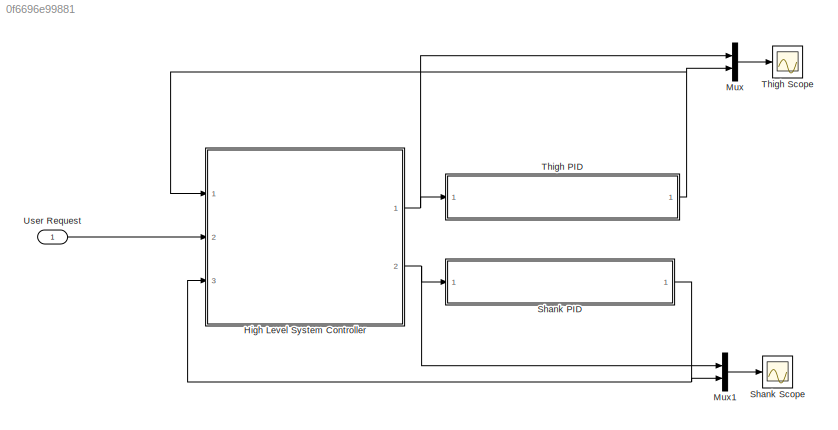
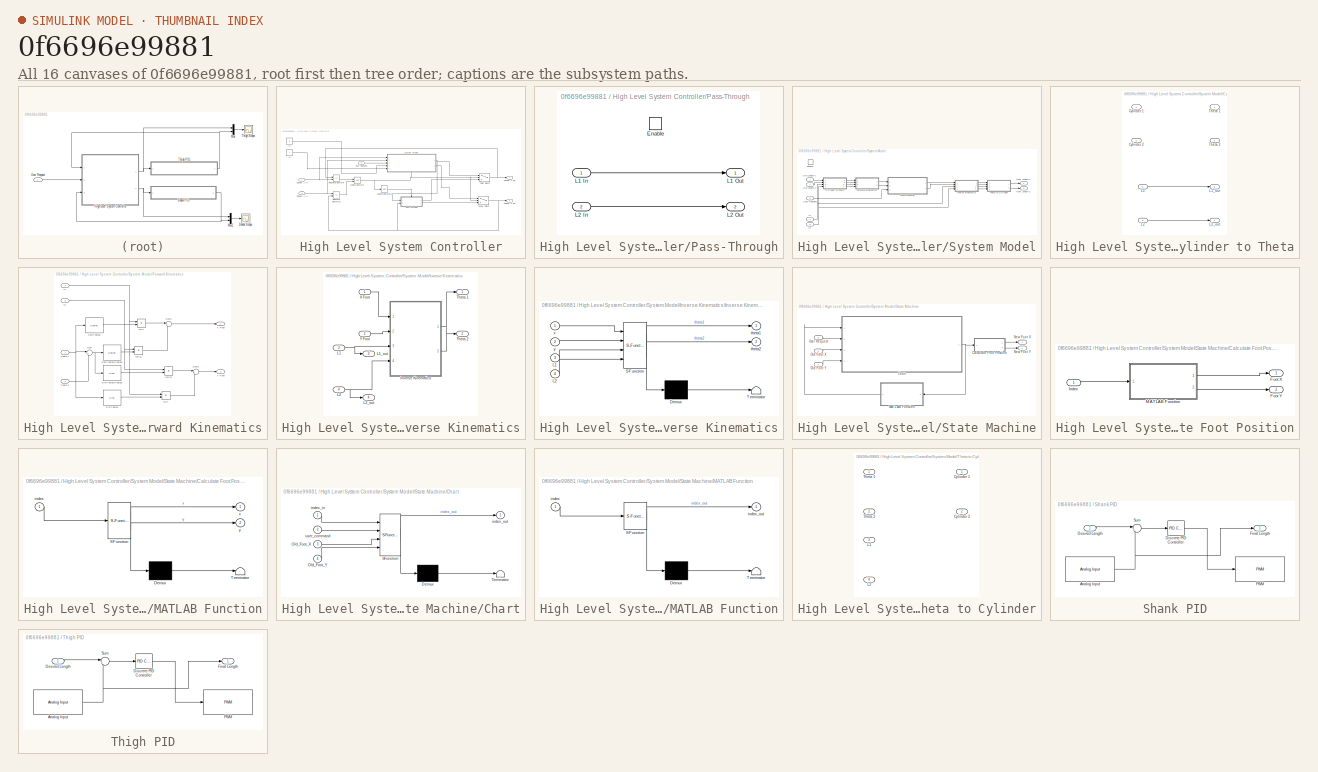
[diagram: thumbnail index - all 16 canvases of the model, root first then tree order]
MODEL slx_0f6696e99881
KIND model
BLOCK [SubSystem] High Level System Controller
  Ports = [3, 2]
  RequestExecContextInheritance = off
BLOCK [Inport] High Level System Controller/Cylinder 1 In
  IconDisplay = Port number
BLOCK [Outport] High Level System Controller/Cylinder 1 Out
  IconDisplay = Port number
BLOCK [Inport] High Level System Controller/Cylinder 2 In
  IconDisplay = Port number
  Port = 3
BLOCK [Outport] High Level System Controller/Cylinder 2 Out
  IconDisplay = Port number
  Port = 2
BLOCK [Constant] High Level System Controller/L1
  Value = 8
BLOCK [Constant] High Level System Controller/L2
  Value = 7
BLOCK [Logic] High Level System Controller/Logical Operator
  AllPortsSameDT = off
  OutDataTypeStr = boolean
  Ports = [2, 1]
BLOCK [Logic] High Level System Controller/Logical Operator1
  AllPortsSameDT = off
  Operator = NOT
  OutDataTypeStr = boolean
  Ports = [1, 1]
BLOCK [SubSystem] High Level System Controller/Pass-Through
  Ports = [2, 2, 1]
  RequestExecContextInheritance = off
  TreatAsAtomicUnit = on
BLOCK [EnablePort] High Level System Controller/Pass-Through/Enable
  Ports = []
BLOCK [Inport] High Level System Controller/Pass-Through/L1 In
  IconDisplay = Port number
BLOCK [Outport] High Level System Controller/Pass-Through/L1 Out
  IconDisplay = Port number
BLOCK [Inport] High Level System Controller/Pass-Through/L2 In
  IconDisplay = Port number
  Port = 2
BLOCK [Outport] High Level System Controller/Pass-Through/L2 Out
  IconDisplay = Port number
  Port = 2
BLOCK [RelationalOperator] High Level System Controller/Relational Operator
  InputSameDT = off
  Operator = <=
  OutDataTypeStr = boolean
  Ports = [2, 1]
BLOCK [RelationalOperator] High Level System Controller/Relational Operator1
  InputSameDT = off
  Operator = <=
  OutDataTypeStr = boolean
  Ports = [2, 1]
BLOCK [Switch] High Level System Controller/Shank Switch
  Criteria = u2 > Threshold
  InputSameDT = off
  SaturateOnIntegerOverflow = off
BLOCK [SubSystem] High Level System Controller/System Model
  Ports = [5, 2, 1]
  RequestExecContextInheritance = off
BLOCK [SubSystem] High Level System Controller/System Model/Cylinder to Theta
  Ports = [4, 4]
  RequestExecContextInheritance = off
BLOCK [Inport] High Level System Controller/System Model/Cylinder to Theta/Cylinder 1
  IconDisplay = Port number
BLOCK [Inport] High Level System Controller/System Model/Cylinder to Theta/Cylinder 2
  IconDisplay = Port number
  Port = 2
BLOCK [Inport] High Level System Controller/System Model/Cylinder to Theta/L1
  IconDisplay = Port number
  Port = 3
BLOCK [Outport] High Level System Controller/System Model/Cylinder to Theta/L1_out
  IconDisplay = Port number
  Port = 3
BLOCK [Inport] High Level System Controller/System Model/Cylinder to Theta/L2
  IconDisplay = Port number
  Port = 4
BLOCK [Outport] High Level System Controller/System Model/Cylinder to Theta/L2_out
  IconDisplay = Port number
  Port = 4
BLOCK [Outport] High Level System Controller/System Model/Cylinder to Theta/Theta 1
  IconDisplay = Port number
BLOCK [Outport] High Level System Controller/System Model/Cylinder to Theta/Theta 2
  IconDisplay = Port number
  Port = 2
BLOCK [EnablePort] High Level System Controller/System Model/Enable
  Ports = []
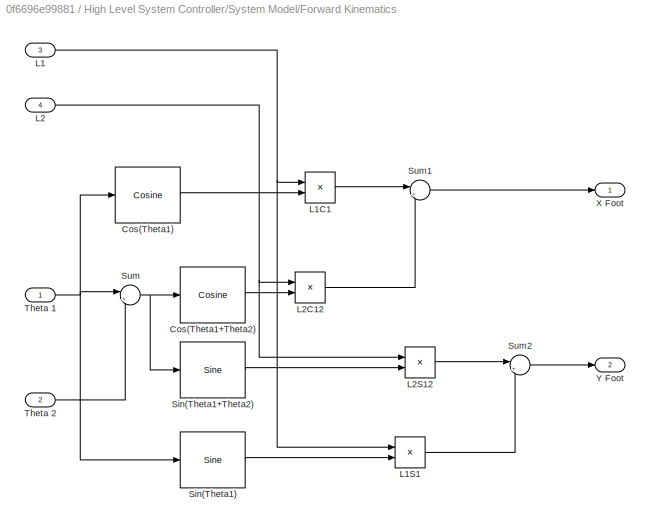
BLOCK [SubSystem] High Level System Controller/System Model/Forward Kinematics
  Ports = [4, 2]
  RequestExecContextInheritance = off
BLOCK [Reference] High Level System Controller/System Model/Forward Kinematics/Cos(Theta1)  REF=simulink/Lookup
Tables/Cosine
  Formula = cos(2*pi*u)
  InternalRulePriority = Speed
  NumDataPoints = (2^5)+1
  OutputWordLength = 16
  Ports = [1, 1]
  SourceBlock = simulink/Lookup\nTables/Cosine
  SourceType = Sine and Cosine
BLOCK [Reference] High Level System Controller/System Model/Forward Kinematics/Cos(Theta1+Theta2)  REF=simulink/Lookup
Tables/Cosine
  Formula = cos(2*pi*u)
  InternalRulePriority = Speed
  NumDataPoints = (2^5)+1
  OutputWordLength = 16
  Ports = [1, 1]
  SourceBlock = simulink/Lookup\nTables/Cosine
  SourceType = Sine and Cosine
BLOCK [Inport] High Level System Controller/System Model/Forward Kinematics/L1
  IconDisplay = Port number
  Port = 3
BLOCK [Product] High Level System Controller/System Model/Forward Kinematics/L1C1
  InputSameDT = off
  OutDataTypeStr = Inherit: Inherit via internal rule
  Ports = [2, 1]
  RndMeth = Floor
  SaturateOnIntegerOverflow = off
BLOCK [Product] High Level System Controller/System Model/Forward Kinematics/L1S1
  InputSameDT = off
  OutDataTypeStr = Inherit: Inherit via internal rule
  Ports = [2, 1]
  RndMeth = Floor
  SaturateOnIntegerOverflow = off
BLOCK [Inport] High Level System Controller/System Model/Forward Kinematics/L2
  IconDisplay = Port number
  Port = 4
BLOCK [Product] High Level System Controller/System Model/Forward Kinematics/L2C12
  InputSameDT = off
  OutDataTypeStr = Inherit: Inherit via internal rule
  Ports = [2, 1]
  RndMeth = Floor
  SaturateOnIntegerOverflow = off
BLOCK [Product] High Level System Controller/System Model/Forward Kinematics/L2S12
  InputSameDT = off
  OutDataTypeStr = Inherit: Inherit via internal rule
  Ports = [2, 1]
  RndMeth = Floor
  SaturateOnIntegerOverflow = off
BLOCK [Reference] High Level System Controller/System Model/Forward Kinematics/Sin(Theta1)  REF=simulink/Lookup
Tables/Sine
  Formula = sin(2*pi*u)
  InternalRulePriority = Speed
  NumDataPoints = (2^5)+1
  OutputWordLength = 16
  Ports = [1, 1]
  SourceBlock = simulink/Lookup\nTables/Sine
  SourceType = Sine and Cosine
BLOCK [Reference] High Level System Controller/System Model/Forward Kinematics/Sin(Theta1+Theta2)  REF=simulink/Lookup
Tables/Sine
  Formula = sin(2*pi*u)
  InternalRulePriority = Speed
  NumDataPoints = (2^5)+1
  OutputWordLength = 16
  Ports = [1, 1]
  SourceBlock = simulink/Lookup\nTables/Sine
  SourceType = Sine and Cosine
BLOCK [Sum] High Level System Controller/System Model/Forward Kinematics/Sum
  IconShape = round
  InputSameDT = off
  Inputs = |++
  OutDataTypeStr = Inherit: Inherit via internal rule
  Ports = [2, 1]
  SaturateOnIntegerOverflow = off
BLOCK [Sum] High Level System Controller/System Model/Forward Kinematics/Sum1
  IconShape = round
  InputSameDT = off
  Inputs = |++
  OutDataTypeStr = Inherit: Inherit via internal rule
  Ports = [2, 1]
  SaturateOnIntegerOverflow = off
BLOCK [Sum] High Level System Controller/System Model/Forward Kinematics/Sum2
  IconShape = round
  InputSameDT = off
  Inputs = |++
  OutDataTypeStr = Inherit: Inherit via internal rule
  Ports = [2, 1]
  SaturateOnIntegerOverflow = off
BLOCK [Inport] High Level System Controller/System Model/Forward Kinematics/Theta 1
  IconDisplay = Port number
BLOCK [Inport] High Level System Controller/System Model/Forward Kinematics/Theta 2
  IconDisplay = Port number
  Port = 2
BLOCK [Outport] High Level System Controller/System Model/Forward Kinematics/X Foot
  IconDisplay = Port number
BLOCK [Outport] High Level System Controller/System Model/Forward Kinematics/Y Foot
  IconDisplay = Port number
  Port = 2
BLOCK [SubSystem] High Level System Controller/System Model/Inverse Kinematics
  Ports = [4, 4]
  RequestExecContextInheritance = off
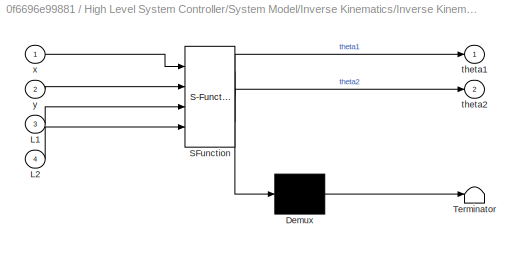
BLOCK [SubSystem] High Level System Controller/System Model/Inverse Kinematics/Inverse Kinematics
  ErrorFcn = Stateflow.Translate.translate
  PermitHierarchicalResolution = ExplicitOnly
  Ports = [4, 2]
  RequestExecContextInheritance = off
  SFBlockType = MATLAB Function
  TreatAsAtomicUnit = on
BLOCK [Demux] High Level System Controller/System Model/Inverse Kinematics/Inverse Kinematics/ Demux 
  Outputs = 1
  Ports = [1, 1]
BLOCK [S-Function] High Level System Controller/System Model/Inverse Kinematics/Inverse Kinematics/ SFunction 
  EnableBusSupport = on
  FunctionName = sf_sfun
  PortCounts = [4 3]
  Ports = [4, 3]
  Tag = Stateflow S-Function TestApp 2
BLOCK [Terminator] High Level System Controller/System Model/Inverse Kinematics/Inverse Kinematics/ Terminator 
BLOCK [Inport] High Level System Controller/System Model/Inverse Kinematics/Inverse Kinematics/L1
  IconDisplay = Port number
  Port = 3
BLOCK [Inport] High Level System Controller/System Model/Inverse Kinematics/Inverse Kinematics/L2
  IconDisplay = Port number
  Port = 4
BLOCK [Outport] High Level System Controller/System Model/Inverse Kinematics/Inverse Kinematics/theta1
  IconDisplay = Port number
BLOCK [Outport] High Level System Controller/System Model/Inverse Kinematics/Inverse Kinematics/theta2
  IconDisplay = Port number
  Port = 2
BLOCK [Inport] High Level System Controller/System Model/Inverse Kinematics/Inverse Kinematics/x
  IconDisplay = Port number
BLOCK [Inport] High Level System Controller/System Model/Inverse Kinematics/Inverse Kinematics/y
  IconDisplay = Port number
  Port = 2
BLOCK [Inport] High Level System Controller/System Model/Inverse Kinematics/L1
  IconDisplay = Port number
  Port = 3
BLOCK [Outport] High Level System Controller/System Model/Inverse Kinematics/L1_out
  IconDisplay = Port number
  Port = 3
BLOCK [Inport] High Level System Controller/System Model/Inverse Kinematics/L2
  IconDisplay = Port number
  Port = 4
BLOCK [Outport] High Level System Controller/System Model/Inverse Kinematics/L2_out
  IconDisplay = Port number
  Port = 4
BLOCK [Outport] High Level System Controller/System Model/Inverse Kinematics/Theta 1
  IconDisplay = Port number
BLOCK [Outport] High Level System Controller/System Model/Inverse Kinematics/Theta 2
  IconDisplay = Port number
  Port = 2
BLOCK [Inport] High Level System Controller/System Model/Inverse Kinematics/X Foot
  IconDisplay = Port number
BLOCK [Inport] High Level System Controller/System Model/Inverse Kinematics/Y Foot
  IconDisplay = Port number
  Port = 2
BLOCK [Inport] High Level System Controller/System Model/L1
  IconDisplay = Port number
  Port = 4
BLOCK [Inport] High Level System Controller/System Model/L2
  IconDisplay = Port number
  Port = 5
BLOCK [Outport] High Level System Controller/System Model/New Length 1
  IconDisplay = Port number
BLOCK [Outport] High Level System Controller/System Model/New Length 2
  IconDisplay = Port number
  Port = 2
BLOCK [Inport] High Level System Controller/System Model/Old Length 1
  IconDisplay = Port number
BLOCK [Inport] High Level System Controller/System Model/Old Length 2
  IconDisplay = Port number
  Port = 2
BLOCK [SubSystem] High Level System Controller/System Model/State Machine
  Ports = [3, 2]
  RequestExecContextInheritance = off
BLOCK [SubSystem] High Level System Controller/System Model/State Machine/Calculate Foot Position
  Ports = [1, 2]
  RequestExecContextInheritance = off
BLOCK [Outport] High Level System Controller/System Model/State Machine/Calculate Foot Position/Foot X
  IconDisplay = Port number
BLOCK [Outport] High Level System Controller/System Model/State Machine/Calculate Foot Position/Foot Y
  IconDisplay = Port number
  Port = 2
BLOCK [Inport] High Level System Controller/System Model/State Machine/Calculate Foot Position/Index
  IconDisplay = Port number
BLOCK [SubSystem] High Level System Controller/System Model/State Machine/Calculate Foot Position/MATLAB Function
  ErrorFcn = Stateflow.Translate.translate
  PermitHierarchicalResolution = ExplicitOnly
  Ports = [1, 2]
  RequestExecContextInheritance = off
  SFBlockType = MATLAB Function
  TreatAsAtomicUnit = on
BLOCK [Demux] High Level System Controller/System Model/State Machine/Calculate Foot Position/MATLAB Function/ Demux 
  Outputs = 1
  Ports = [1, 1]
BLOCK [S-Function] High Level System Controller/System Model/State Machine/Calculate Foot Position/MATLAB Function/ SFunction 
  EnableBusSupport = off
  FunctionName = sf_sfun
  PortCounts = [1 3]
  Ports = [1, 3]
  Tag = Stateflow S-Function TestApp 1
BLOCK [Terminator] High Level System Controller/System Model/State Machine/Calculate Foot Position/MATLAB Function/ Terminator 
BLOCK [Inport] High Level System Controller/System Model/State Machine/Calculate Foot Position/MATLAB Function/index
  IconDisplay = Port number
BLOCK [Outport] High Level System Controller/System Model/State Machine/Calculate Foot Position/MATLAB Function/x
  IconDisplay = Port number
BLOCK [Outport] High Level System Controller/System Model/State Machine/Calculate Foot Position/MATLAB Function/y
  IconDisplay = Port number
  Port = 2
BLOCK [SubSystem] High Level System Controller/System Model/State Machine/Chart
  ErrorFcn = Stateflow.Translate.translate
  PermitHierarchicalResolution = ExplicitOnly
  Ports = [4, 1]
  RequestExecContextInheritance = off
  SFBlockType = Chart
  TreatAsAtomicUnit = on
BLOCK [Demux] High Level System Controller/System Model/State Machine/Chart/ Demux 
  Outputs = 1
  Ports = [1, 1]
BLOCK [S-Function] High Level System Controller/System Model/State Machine/Chart/ SFunction 
  EnableBusSupport = on
  FunctionName = sf_sfun
  PortCounts = [4 2]
  Ports = [4, 2]
  Tag = Stateflow S-Function TestApp 3
BLOCK [Terminator] High Level System Controller/System Model/State Machine/Chart/ Terminator 
BLOCK [Inport] High Level System Controller/System Model/State Machine/Chart/Old_Foot_X
  IconDisplay = Port number
  Port = 3
BLOCK [Inport] High Level System Controller/System Model/State Machine/Chart/Old_Foot_Y
  IconDisplay = Port number
  Port = 4
BLOCK [Inport] High Level System Controller/System Model/State Machine/Chart/index_in
  IconDisplay = Port number
BLOCK [Outport] High Level System Controller/System Model/State Machine/Chart/index_out
  IconDisplay = Port number
BLOCK [Inport] High Level System Controller/System Model/State Machine/Chart/user_command
  IconDisplay = Port number
  Port = 2
BLOCK [SubSystem] High Level System Controller/System Model/State Machine/MATLAB Function
  ErrorFcn = Stateflow.Translate.translate
  PermitHierarchicalResolution = ExplicitOnly
  Ports = [1, 1]
  RequestExecContextInheritance = off
  SFBlockType = MATLAB Function
  TreatAsAtomicUnit = on
BLOCK [Demux] High Level System Controller/System Model/State Machine/MATLAB Function/ Demux 
  Outputs = 1
  Ports = [1, 1]
BLOCK [S-Function] High Level System Controller/System Model/State Machine/MATLAB Function/ SFunction 
  EnableBusSupport = off
  FunctionName = sf_sfun
  PortCounts = [1 2]
  Ports = [1, 2]
  Tag = Stateflow S-Function TestApp 4
BLOCK [Terminator] High Level System Controller/System Model/State Machine/MATLAB Function/ Terminator 
BLOCK [Inport] High Level System Controller/System Model/State Machine/MATLAB Function/index
  IconDisplay = Port number
BLOCK [Outport] High Level System Controller/System Model/State Machine/MATLAB Function/index_out
  IconDisplay = Port number
BLOCK [Outport] High Level System Controller/System Model/State Machine/New Foot X
  IconDisplay = Port number
BLOCK [Outport] High Level System Controller/System Model/State Machine/New Foot Y
  IconDisplay = Port number
  Port = 2
BLOCK [Inport] High Level System Controller/System Model/State Machine/Old Foot X
  IconDisplay = Port number
BLOCK [Inport] High Level System Controller/System Model/State Machine/Old Foot Y
  IconDisplay = Port number
  Port = 2
BLOCK [Inport] High Level System Controller/System Model/State Machine/User Request
  IconDisplay = Port number
  Port = 3
BLOCK [SubSystem] High Level System Controller/System Model/Theta to Cylinder
  Ports = [4, 2]
  RequestExecContextInheritance = off
BLOCK [Outport] High Level System Controller/System Model/Theta to Cylinder/Cylinder 1
  IconDisplay = Port number
BLOCK [Outport] High Level System Controller/System Model/Theta to Cylinder/Cylinder 2
  IconDisplay = Port number
  Port = 2
BLOCK [Inport] High Level System Controller/System Model/Theta to Cylinder/L1
  IconDisplay = Port number
  Port = 3
BLOCK [Inport] High Level System Controller/System Model/Theta to Cylinder/L2
  IconDisplay = Port number
  Port = 4
BLOCK [Inport] High Level System Controller/System Model/Theta to Cylinder/Theta 1
  IconDisplay = Port number
BLOCK [Inport] High Level System Controller/System Model/Theta to Cylinder/Theta 2
  IconDisplay = Port number
  Port = 2
BLOCK [Inport] High Level System Controller/System Model/User Request
  IconDisplay = Port number
  Port = 3
BLOCK [Switch] High Level System Controller/Thigh Switch
  Criteria = u2 > Threshold
  InputSameDT = off
  SaturateOnIntegerOverflow = off
BLOCK [Inport] High Level System Controller/User Request
  IconDisplay = Port number
  Port = 2
BLOCK [Mux] Mux
  DisplayOption = bar
  Inputs = 2
  Ports = [2, 1]
BLOCK [Mux] Mux1
  DisplayOption = bar
  Inputs = 2
  Ports = [2, 1]
BLOCK [SubSystem] Shank PID
  Ports = [1, 1]
  RequestExecContextInheritance = off
BLOCK [Reference] Shank PID/Analog Input  REF=arduinolib/Analog Input
  Ports = [0, 1]
  SourceBlock = arduinolib/Analog Input
  SourceType = Arduino Analog Input
  pinNumber = 6
  sampleTime = -1
BLOCK [Inport] Shank PID/Desired Length
  IconDisplay = Port number
BLOCK [Reference] Shank PID/Discrete PID Controller  REF=simulink/Continuous/PID Controller
  AntiWindupMode = none
  Controller = PID
  D = 0
  DOutDataTypeStr = Inherit: Inherit via internal rule
  DOutMax = []
  DOutMin = []
  DParamDataTypeStr = Inherit: Inherit via internal rule
  DParamMax = []
  DParamMin = []
  ExternalReset = none
  FilterContinuousStateAttributes = ''
  FilterMethod = Forward Euler
  FilterOutDataTypeStr = Inherit: Inherit via internal rule
  FilterOutMax = []
  FilterOutMin = []
  FilterRTWStateStorageClass = Auto
  FilterStateMustResolveToSignalObject = off
  Form = Parallel
  I = 0.78
  IOutDataTypeStr = Inherit: Inherit via internal rule
  IOutMax = []
  IOutMin = []
  IParamDataTypeStr = Inherit: Inherit via internal rule
  IParamMax = []
  IParamMin = []
  IgnoreLimit = off
  InitialConditionForFilter = 0
  InitialConditionForIntegrator = 0
  InitialConditionSource = internal
  IntegratorContinuousStateAttributes = ''
  IntegratorMethod = Forward Euler
  IntegratorOutDataTypeStr = Inherit: Inherit via internal rule
  IntegratorOutMax = []
  IntegratorOutMin = []
  IntegratorRTWStateStorageClass = Auto
  IntegratorStateMustResolveToSignalObject = off
  Kb = 1
  KbOutDataTypeStr = Inherit: Inherit via internal rule
  KbOutMax = []
  KbOutMin = []
  KbParamDataTypeStr = Inherit: Inherit via internal rule
  KbParamMax = []
  KbParamMin = []
  Kt = 1
  KtOutDataTypeStr = Inherit: Inherit via internal rule
  KtOutMax = []
  KtOutMin = []
  KtParamDataTypeStr = Inherit: Inherit via internal rule
  KtParamMax = []
  KtParamMin = []
  LimitOutput = off
  LinearizeAsGain = off
  LockScale = off
  LowerSaturationLimit = -inf
  N = 100
  NOutDataTypeStr = Inherit: Inherit via internal rule
  NOutMax = []
  NOutMin = []
  NParamDataTypeStr = Inherit: Inherit via internal rule
  NParamMax = []
  NParamMin = []
  P = 25
  POutDataTypeStr = Inherit: Inherit via internal rule
  POutMax = []
  POutMin = []
  PParamDataTypeStr = Inherit: Inherit via internal rule
  PParamMax = []
  PParamMin = []
  Ports = [1, 1]
  RndMeth = Floor
  SampleTime = -1
  SaturateOnIntegerOverflow = off
  SaturationOutDataTypeStr = Inherit: Same as input
  SaturationOutMax = []
  SaturationOutMin = []
  SourceBlock = simulink/Continuous/PID Controller
  SourceType = PID 1dof
  SumAccumDataTypeStr = Inherit: Inherit via internal rule
  SumDAccumDataTypeStr = Inherit: Inherit via internal rule
  SumDOutDataTypeStr = Inherit: Inherit via internal rule
  SumDOutMax = []
  SumDOutMin = []
  SumI1AccumDataTypeStr = Inherit: Inherit via internal rule
  SumI1OutDataTypeStr = Inherit: Inherit via internal rule
  SumI1OutMax = []
  SumI1OutMin = []
  SumI2AccumDataTypeStr = Inherit: Inherit via internal rule
  SumI2OutDataTypeStr = Inherit: Inherit via internal rule
  SumI2OutMax = []
  SumI2OutMin = []
  SumI3AccumDataTypeStr = Inherit: Inherit via internal rule
  SumI3OutDataTypeStr = Inherit: Inherit via internal rule
  SumI3OutMax = []
  SumI3OutMin = []
  SumOutDataTypeStr = Inherit: Inherit via internal rule
  SumOutMax = []
  SumOutMin = []
  TimeDomain = Discrete-time
  TrackingMode = off
  UpperSaturationLimit = inf
  ZeroCross = on
BLOCK [Outport] Shank PID/Final Length
  IconDisplay = Port number
BLOCK [Reference] Shank PID/PWM  REF=arduinolib/PWM
  Ports = [1]
  SourceBlock = arduinolib/PWM
  SourceType = Arduino PWM
  pinNumber = 7
BLOCK [Sum] Shank PID/Sum
  IconShape = round
  InputSameDT = off
  Inputs = |+-
  OutDataTypeStr = Inherit: Inherit via internal rule
  Ports = [2, 1]
  SaturateOnIntegerOverflow = off
BLOCK [Scope] Shank Scope
  Floating = off
  NumInputPorts = 1
  Ports = [1]
  SaveName = ScopeData1
  ShowLegends = off
  TimeRange = 1
  YMax = 10
  YMin = 0
BLOCK [SubSystem] Thigh PID
  Ports = [1, 1]
  RequestExecContextInheritance = off
BLOCK [Reference] Thigh PID/Analog Input  REF=arduinolib/Analog Input
  Ports = [0, 1]
  SourceBlock = arduinolib/Analog Input
  SourceType = Arduino Analog Input
  pinNumber = 4
  sampleTime = -1
BLOCK [Inport] Thigh PID/Desired Length
  IconDisplay = Port number
BLOCK [Reference] Thigh PID/Discrete PID Controller  REF=simulink/Continuous/PID Controller
  AntiWindupMode = none
  Controller = PID
  D = 0
  DOutDataTypeStr = Inherit: Inherit via internal rule
  DOutMax = []
  DOutMin = []
  DParamDataTypeStr = Inherit: Inherit via internal rule
  DParamMax = []
  DParamMin = []
  ExternalReset = none
  FilterContinuousStateAttributes = ''
  FilterMethod = Forward Euler
  FilterOutDataTypeStr = Inherit: Inherit via internal rule
  FilterOutMax = []
  FilterOutMin = []
  FilterRTWStateStorageClass = Auto
  FilterStateMustResolveToSignalObject = off
  Form = Parallel
  I = 0.78
  IOutDataTypeStr = Inherit: Inherit via internal rule
  IOutMax = []
  IOutMin = []
  IParamDataTypeStr = Inherit: Inherit via internal rule
  IParamMax = []
  IParamMin = []
  IgnoreLimit = off
  InitialConditionForFilter = 0
  InitialConditionForIntegrator = 0
  InitialConditionSource = internal
  IntegratorContinuousStateAttributes = ''
  IntegratorMethod = Forward Euler
  IntegratorOutDataTypeStr = Inherit: Inherit via internal rule
  IntegratorOutMax = []
  IntegratorOutMin = []
  IntegratorRTWStateStorageClass = Auto
  IntegratorStateMustResolveToSignalObject = off
  Kb = 1
  KbOutDataTypeStr = Inherit: Inherit via internal rule
  KbOutMax = []
  KbOutMin = []
  KbParamDataTypeStr = Inherit: Inherit via internal rule
  KbParamMax = []
  KbParamMin = []
  Kt = 1
  KtOutDataTypeStr = Inherit: Inherit via internal rule
  KtOutMax = []
  KtOutMin = []
  KtParamDataTypeStr = Inherit: Inherit via internal rule
  KtParamMax = []
  KtParamMin = []
  LimitOutput = off
  LinearizeAsGain = off
  LockScale = off
  LowerSaturationLimit = -inf
  N = 100
  NOutDataTypeStr = Inherit: Inherit via internal rule
  NOutMax = []
  NOutMin = []
  NParamDataTypeStr = Inherit: Inherit via internal rule
  NParamMax = []
  NParamMin = []
  P = 25
  POutDataTypeStr = Inherit: Inherit via internal rule
  POutMax = []
  POutMin = []
  PParamDataTypeStr = Inherit: Inherit via internal rule
  PParamMax = []
  PParamMin = []
  Ports = [1, 1]
  RndMeth = Floor
  SampleTime = -1
  SaturateOnIntegerOverflow = off
  SaturationOutDataTypeStr = Inherit: Same as input
  SaturationOutMax = []
  SaturationOutMin = []
  SourceBlock = simulink/Continuous/PID Controller
  SourceType = PID 1dof
  SumAccumDataTypeStr = Inherit: Inherit via internal rule
  SumDAccumDataTypeStr = Inherit: Inherit via internal rule
  SumDOutDataTypeStr = Inherit: Inherit via internal rule
  SumDOutMax = []
  SumDOutMin = []
  SumI1AccumDataTypeStr = Inherit: Inherit via internal rule
  SumI1OutDataTypeStr = Inherit: Inherit via internal rule
  SumI1OutMax = []
  SumI1OutMin = []
  SumI2AccumDataTypeStr = Inherit: Inherit via internal rule
  SumI2OutDataTypeStr = Inherit: Inherit via internal rule
  SumI2OutMax = []
  SumI2OutMin = []
  SumI3AccumDataTypeStr = Inherit: Inherit via internal rule
  SumI3OutDataTypeStr = Inherit: Inherit via internal rule
  SumI3OutMax = []
  SumI3OutMin = []
  SumOutDataTypeStr = Inherit: Inherit via internal rule
  SumOutMax = []
  SumOutMin = []
  TimeDomain = Discrete-time
  TrackingMode = off
  UpperSaturationLimit = inf
  ZeroCross = on
BLOCK [Outport] Thigh PID/Final Length
  IconDisplay = Port number
BLOCK [Reference] Thigh PID/PWM  REF=arduinolib/PWM
  Ports = [1]
  SourceBlock = arduinolib/PWM
  SourceType = Arduino PWM
  pinNumber = 5
BLOCK [Sum] Thigh PID/Sum
  IconShape = round
  InputSameDT = off
  Inputs = |+-
  OutDataTypeStr = Inherit: Inherit via internal rule
  Ports = [2, 1]
  SaturateOnIntegerOverflow = off
BLOCK [Scope] Thigh Scope
  Floating = off
  NumInputPorts = 1
  Ports = [1]
  ShowLegends = off
  TimeRange = 1
  YMax = 10
  YMin = 0
BLOCK [Inport] User Request
  IconDisplay = Port number
NET High Level System Controller/Cylinder 1 In:1 -> High Level System Controller/Relational Operator:2, High Level System Controller/System Model:1
NET High Level System Controller/Cylinder 2 In:1 -> High Level System Controller/Relational Operator1:1, High Level System Controller/System Model:2
LINE High Level System Controller/L1:1 -> High Level System Controller/System Model:4
LINE High Level System Controller/L2:1 -> High Level System Controller/System Model:5
LINE High Level System Controller/Logical Operator1:1 -> High Level System Controller/Pass-Through:enable
NET High Level System Controller/Logical Operator:1 -> High Level System Controller/Logical Operator1:1, High Level System Controller/Shank Switch:2, High Level System Controller/System Model:enable, High Level System Controller/Thigh Switch:2
LINE High Level System Controller/Pass-Through/L1 In:1 -> High Level System Controller/Pass-Through/L1 Out:1
LINE High Level System Controller/Pass-Through/L2 In:1 -> High Level System Controller/Pass-Through/L2 Out:1
LINE High Level System Controller/Pass-Through:1 -> High Level System Controller/Thigh Switch:3
LINE High Level System Controller/Pass-Through:2 -> High Level System Controller/Shank Switch:3
LINE High Level System Controller/Relational Operator1:1 -> High Level System Controller/Logical Operator:2
LINE High Level System Controller/Relational Operator:1 -> High Level System Controller/Logical Operator:1
NET High Level System Controller/Shank Switch:1 -> High Level System Controller/Cylinder 2 Out:1, High Level System Controller/Pass-Through:2, High Level System Controller/Relational Operator1:2
LINE High Level System Controller/System Model/Cylinder to Theta/L1:1 -> High Level System Controller/System Model/Cylinder to Theta/L1_out:1
LINE High Level System Controller/System Model/Cylinder to Theta/L2:1 -> High Level System Controller/System Model/Cylinder to Theta/L2_out:1
LINE High Level System Controller/System Model/Cylinder to Theta:1 -> High Level System Controller/System Model/Forward Kinematics:1
LINE High Level System Controller/System Model/Cylinder to Theta:2 -> High Level System Controller/System Model/Forward Kinematics:2
LINE High Level System Controller/System Model/Cylinder to Theta:3 -> High Level System Controller/System Model/Forward Kinematics:3
LINE High Level System Controller/System Model/Cylinder to Theta:4 -> High Level System Controller/System Model/Forward Kinematics:4
LINE High Level System Controller/System Model/Forward Kinematics/Cos(Theta1):1 -> High Level System Controller/System Model/Forward Kinematics/L1C1:2
LINE High Level System Controller/System Model/Forward Kinematics/Cos(Theta1+Theta2):1 -> High Level System Controller/System Model/Forward Kinematics/L2C12:2
NET High Level System Controller/System Model/Forward Kinematics/L1:1 -> High Level System Controller/System Model/Forward Kinematics/L1C1:1, High Level System Controller/System Model/Forward Kinematics/L1S1:1
LINE High Level System Controller/System Model/Forward Kinematics/L1C1:1 -> High Level System Controller/System Model/Forward Kinematics/Sum1:1
LINE High Level System Controller/System Model/Forward Kinematics/L1S1:1 -> High Level System Controller/System Model/Forward Kinematics/Sum2:2
NET High Level System Controller/System Model/Forward Kinematics/L2:1 -> High Level System Controller/System Model/Forward Kinematics/L2C12:1, High Level System Controller/System Model/Forward Kinematics/L2S12:1
LINE High Level System Controller/System Model/Forward Kinematics/L2C12:1 -> High Level System Controller/System Model/Forward Kinematics/Sum1:2
LINE High Level System Controller/System Model/Forward Kinematics/L2S12:1 -> High Level System Controller/System Model/Forward Kinematics/Sum2:1
LINE High Level System Controller/System Model/Forward Kinematics/Sin(Theta1):1 -> High Level System Controller/System Model/Forward Kinematics/L1S1:2
LINE High Level System Controller/System Model/Forward Kinematics/Sin(Theta1+Theta2):1 -> High Level System Controller/System Model/Forward Kinematics/L2S12:2
LINE High Level System Controller/System Model/Forward Kinematics/Sum1:1 -> High Level System Controller/System Model/Forward Kinematics/X Foot:1
LINE High Level System Controller/System Model/Forward Kinematics/Sum2:1 -> High Level System Controller/System Model/Forward Kinematics/Y Foot:1
NET High Level System Controller/System Model/Forward Kinematics/Sum:1 -> High Level System Controller/System Model/Forward Kinematics/Cos(Theta1+Theta2):1, High Level System Controller/System Model/Forward Kinematics/Sin(Theta1+Theta2):1
NET High Level System Controller/System Model/Forward Kinematics/Theta 1:1 -> High Level System Controller/System Model/Forward Kinematics/Cos(Theta1):1, High Level System Controller/System Model/Forward Kinematics/Sin(Theta1):1, High Level System Controller/System Model/Forward Kinematics/Sum:1
LINE High Level System Controller/System Model/Forward Kinematics/Theta 2:1 -> High Level System Controller/System Model/Forward Kinematics/Sum:2
LINE High Level System Controller/System Model/Forward Kinematics:1 -> High Level System Controller/System Model/State Machine:1
LINE High Level System Controller/System Model/Forward Kinematics:2 -> High Level System Controller/System Model/State Machine:2
LINE High Level System Controller/System Model/Inverse Kinematics/Inverse Kinematics:1 -> High Level System Controller/System Model/Inverse Kinematics/Theta 1:1
LINE High Level System Controller/System Model/Inverse Kinematics/Inverse Kinematics:2 -> High Level System Controller/System Model/Inverse Kinematics/Theta 2:1
NET High Level System Controller/System Model/Inverse Kinematics/L1:1 -> High Level System Controller/System Model/Inverse Kinematics/Inverse Kinematics:3, High Level System Controller/System Model/Inverse Kinematics/L1_out:1
NET High Level System Controller/System Model/Inverse Kinematics/L2:1 -> High Level System Controller/System Model/Inverse Kinematics/Inverse Kinematics:4, High Level System Controller/System Model/Inverse Kinematics/L2_out:1
LINE High Level System Controller/System Model/Inverse Kinematics/X Foot:1 -> High Level System Controller/System Model/Inverse Kinematics/Inverse Kinematics:1
LINE High Level System Controller/System Model/Inverse Kinematics/Y Foot:1 -> High Level System Controller/System Model/Inverse Kinematics/Inverse Kinematics:2
LINE High Level System Controller/System Model/Inverse Kinematics:1 -> High Level System Controller/System Model/Theta to Cylinder:1
LINE High Level System Controller/System Model/Inverse Kinematics:2 -> High Level System Controller/System Model/Theta to Cylinder:2
LINE High Level System Controller/System Model/Inverse Kinematics:3 -> High Level System Controller/System Model/Theta to Cylinder:3
LINE High Level System Controller/System Model/Inverse Kinematics:4 -> High Level System Controller/System Model/Theta to Cylinder:4
NET High Level System Controller/System Model/L1:1 -> High Level System Controller/System Model/Cylinder to Theta:3, High Level System Controller/System Model/Inverse Kinematics:3
NET High Level System Controller/System Model/L2:1 -> High Level System Controller/System Model/Cylinder to Theta:4, High Level System Controller/System Model/Inverse Kinematics:4
LINE High Level System Controller/System Model/Old Length 1:1 -> High Level System Controller/System Model/Cylinder to Theta:1
LINE High Level System Controller/System Model/Old Length 2:1 -> High Level System Controller/System Model/Cylinder to Theta:2
LINE High Level System Controller/System Model/State Machine/Calculate Foot Position/Index:1 -> High Level System Controller/System Model/State Machine/Calculate Foot Position/MATLAB Function:1
LINE High Level System Controller/System Model/State Machine/Calculate Foot Position/MATLAB Function:1 -> High Level System Controller/System Model/State Machine/Calculate Foot Position/Foot X:1
LINE High Level System Controller/System Model/State Machine/Calculate Foot Position/MATLAB Function:2 -> High Level System Controller/System Model/State Machine/Calculate Foot Position/Foot Y:1
LINE High Level System Controller/System Model/State Machine/Calculate Foot Position:1 -> High Level System Controller/System Model/State Machine/New Foot X:1
LINE High Level System Controller/System Model/State Machine/Calculate Foot Position:2 -> High Level System Controller/System Model/State Machine/New Foot Y:1
NET High Level System Controller/System Model/State Machine/Chart:1 -> High Level System Controller/System Model/State Machine/Calculate Foot Position:1, High Level System Controller/System Model/State Machine/MATLAB Function:1
LINE High Level System Controller/System Model/State Machine/MATLAB Function:1 -> High Level System Controller/System Model/State Machine/Chart:1
LINE High Level System Controller/System Model/State Machine/Old Foot X:1 -> High Level System Controller/System Model/State Machine/Chart:3
LINE High Level System Controller/System Model/State Machine/Old Foot Y:1 -> High Level System Controller/System Model/State Machine/Chart:4
LINE High Level System Controller/System Model/State Machine/User Request:1 -> High Level System Controller/System Model/State Machine/Chart:2
LINE High Level System Controller/System Model/State Machine:1 -> High Level System Controller/System Model/Inverse Kinematics:1
LINE High Level System Controller/System Model/State Machine:2 -> High Level System Controller/System Model/Inverse Kinematics:2
LINE High Level System Controller/System Model/Theta to Cylinder:1 -> High Level System Controller/System Model/New Length 1:1
LINE High Level System Controller/System Model/Theta to Cylinder:2 -> High Level System Controller/System Model/New Length 2:1
LINE High Level System Controller/System Model/User Request:1 -> High Level System Controller/System Model/State Machine:3
NET High Level System Controller/System Model:1 -> High Level System Controller/Pass-Through:1, High Level System Controller/Thigh Switch:1
LINE High Level System Controller/System Model:2 -> High Level System Controller/Shank Switch:1
NET High Level System Controller/Thigh Switch:1 -> High Level System Controller/Cylinder 1 Out:1, High Level System Controller/Relational Operator:1
LINE High Level System Controller/User Request:1 -> High Level System Controller/System Model:3
NET High Level System Controller:1 -> Mux:1, Thigh PID:1
NET High Level System Controller:2 -> Mux1:1, Shank PID:1
LINE Mux1:1 -> Shank Scope:1
LINE Mux:1 -> Thigh Scope:1
NET Shank PID/Analog Input:1 -> Shank PID/Final Length:1, Shank PID/Sum:2
LINE Shank PID/Desired Length:1 -> Shank PID/Sum:1
LINE Shank PID/Discrete PID Controller:1 -> Shank PID/PWM:1
LINE Shank PID/Sum:1 -> Shank PID/Discrete PID Controller:1
NET Shank PID:1 -> High Level System Controller:3, Mux1:2
NET Thigh PID/Analog Input:1 -> Thigh PID/Final Length:1, Thigh PID/Sum:2
LINE Thigh PID/Desired Length:1 -> Thigh PID/Sum:1
LINE Thigh PID/Discrete PID Controller:1 -> Thigh PID/PWM:1
LINE Thigh PID/Sum:1 -> Thigh PID/Discrete PID Controller:1
NET Thigh PID:1 -> High Level System Controller:1, Mux:2
LINE User Request:1 -> High Level System Controller:2
note: NET lines group one-source signal fan-out (src -> all destinations, sorted); 1:1 wires keep LINE
